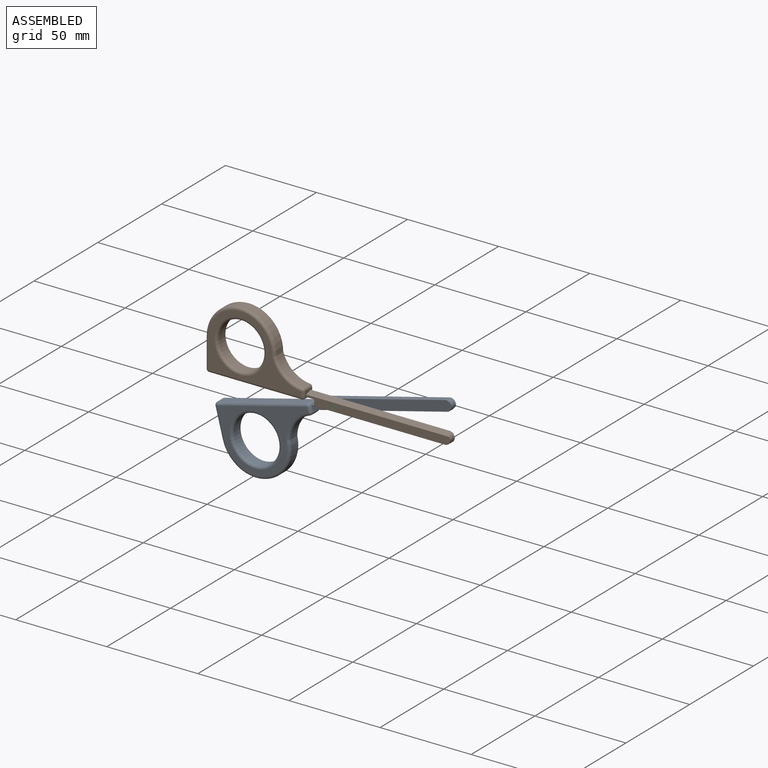
[diagram: assembled view]
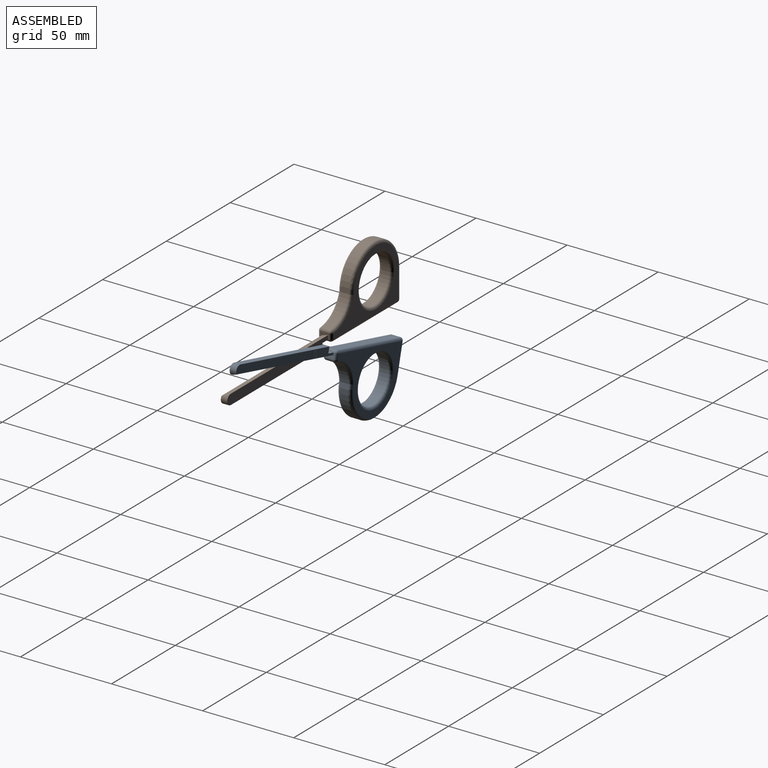
[diagram: assembled view, second angle]
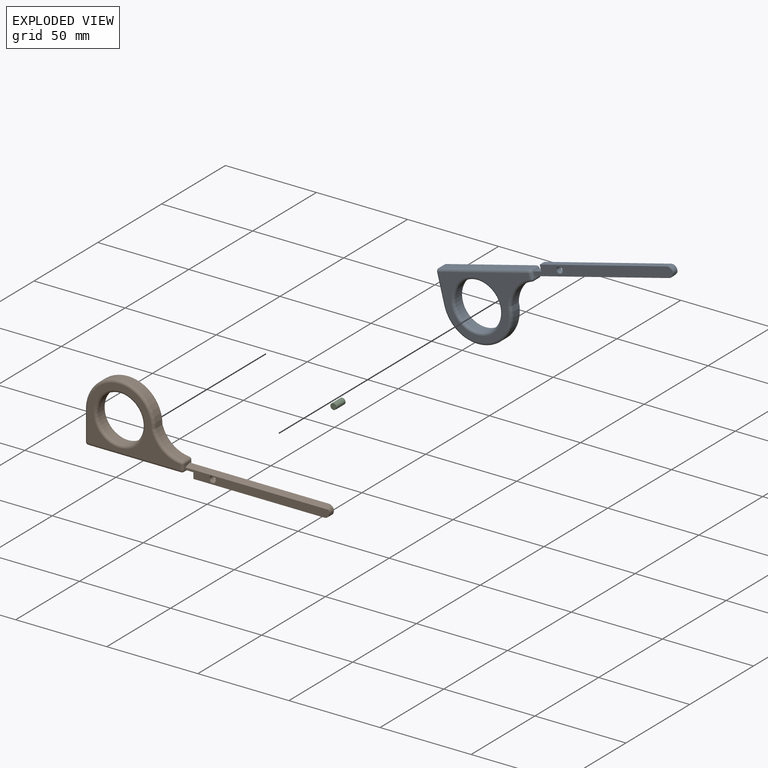
[diagram: exploded view]
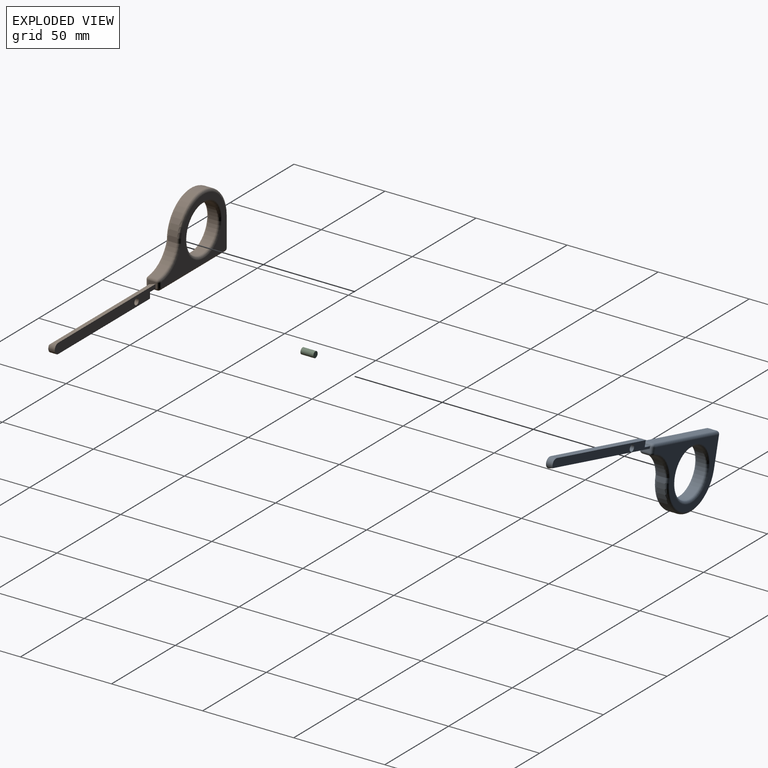
[diagram: exploded view, second angle]
ASSEMBLY  parts=3 mates=2
PART A: 41 faces, bbox 134.5x7.6x40.4 mm
  f0: plane 4.57x2.88mm, normal (1,0,0), area 5.9mm2, adj f1,f3,f15,f23,f28,f31,f34,f37
  f1: plane 76.2x0.01mm, normal (0,0,1), area 0.5mm2, adj f0,f2,f15,f39
  f2: cylinder r=2.79mm len=5.59mm, axis (0,1,0), area 25.2mm2, adj f1,f3,f13,f15,f39
  f3: plane 79.02x4.48mm, normal (0,-1,0), area 328.1mm2, adj f0,f2,f11,f12,f13,f14,f23,f39
  f4: cylinder r=16.51mm len=14.48mm, axis (0,1,0), area 91mm2, adj f5,f29,f30,f34
  f5: cylinder r=19.05mm len=38.1mm, axis (0,1,0), area 273.6mm2, adj f4,f6,f25,f26
  f6: plane 16.26x4.57mm, normal (-1,0,0), area 74.3mm2, adj f5,f16,f20,f21
  f7: cylinder r=12.7mm len=25.4mm, axis (0,1,0), area 364.8mm2, adj f35,f36
  f8: plane 50.93x4.57mm, normal (0,0,-1), area 232.8mm2, adj f16,f19,f22,f23
  f9: plane 50.93x33.78mm, normal (0,-1,0), area 521.5mm2, adj f19,f20,f25,f28,f29,f36
  f10: plane 50.93x33.78mm, normal (0,1,0), area 521.5mm2, adj f21,f22,f26,f30,f31,f35
  f11: plane 4.34x3.56mm, normal (0,0,-1), area 15.4mm2, adj f3,f12,f15,f23
  f12: plane 3.56x3.3mm, normal (-1,0,0), area 11.7mm2, adj f3,f11,f13,f15
  f13: plane 71.87x3.56mm, normal (0,0,-1), area 255.6mm2, adj f2,f3,f12,f15
  f14: cylinder r=1.71mm len=3.56mm, axis (0,1,0), area 38.3mm2, adj f3,f15
  f15: plane 79.02x5.59mm, normal (0,1,0), area 414.6mm2, adj f0,f1,f2,f11,f12,f13,f14,f23
  f16: cylinder r=1.52mm len=4.57mm, axis (0,-1,0), area 10.9mm2, adj f6,f8,f17,f18
  f17: sphere r=1.52mm, area 3.6mm2, adj f16,f19,f20
  f18: sphere r=1.52mm, area 3.6mm2, adj f16,f21,f22
  f19: cylinder r=1.52mm len=50.93mm, axis (-1,0,0), area 121.9mm2, adj f8,f9,f17,f24
  f20: cylinder r=1.52mm len=16.26mm, axis (0,0,1), area 38.9mm2, adj f6,f9,f17,f25
  f21: cylinder r=1.52mm len=16.26mm, axis (0,0,-1), area 38.9mm2, adj f6,f10,f18,f26
  f22: cylinder r=1.52mm len=50.93mm, axis (1,0,0), area 121.9mm2, adj f8,f10,f18,f27
  f23: cylinder r=1.52mm len=4.57mm, axis (0,1,0), area 10mm2, adj f0,f3,f8,f11,f15,f24,f27
  f24: sphere r=1.52mm, area 3.6mm2, adj f19,f23,f28
  f25: torus R=17.53mm, axis (0,-1,0), area 139.3mm2, adj f5,f9,f20,f29
  f26: torus R=17.53mm, axis (0,-1,0), area 139.3mm2, adj f5,f10,f21,f30
  f27: sphere r=1.52mm, area 3.6mm2, adj f22,f23,f31
  f28: cylinder r=1.52mm len=2.88mm, axis (0,0,-1), area 6.9mm2, adj f0,f9,f24,f32
  f29: torus R=18.03mm, axis (0,-1,0), area 49.4mm2, adj f4,f9,f25,f32
  f30: torus R=18.03mm, axis (0,-1,0), area 49.4mm2, adj f4,f10,f26,f33
  f31: cylinder r=1.52mm len=2.88mm, axis (0,0,1), area 6.9mm2, adj f0,f10,f27,f33
  f32: sphere r=1.52mm, area 3.5mm2, adj f28,f29,f34
  f33: sphere r=1.52mm, area 3.5mm2, adj f30,f31,f34
  f34: cylinder r=1.52mm len=4.57mm, axis (0,1,0), area 10.4mm2, adj f0,f4,f32,f33
  f35: torus R=14.22mm, axis (0,-1,0), area 199.4mm2, adj f7,f10
  f36: torus R=14.22mm, axis (0,-1,0), area 199.4mm2, adj f7,f9
  f37: plane 3.61x0.12mm, normal (0,0,-1), area 0.4mm2, adj f0,f38,f39,f40
  f38: plane 1.13x0.12mm, normal (0,1,-0.01), area 0.1mm2, adj f0,f37,f39,f40
  f39: plane 78.55x3.62mm, normal (0,-0.3,0.95), area 289.7mm2, adj f0,f1,f2,f3,f37,f38,f40
  f40: plane 3.62x1.13mm, normal (1,0,0), area 2mm2, adj f37,f38,f39
PART B: same geometry as A
PART C: 3 faces, bbox 3.4x3.4x7.1 mm
  f0: cylinder r=1.69mm len=7.11mm, axis (0,0,-1), area 75.5mm2, adj f1,f2
  f1: plane 3.38x3.38mm, normal (0,0,1), area 9mm2, adj f0
  f2: plane 3.38x3.38mm, normal (0,0,-1), area 9mm2, adj f0
PLACE A rot(axis=(0.99,0,0.12),180deg) t=(42.77,34.47,-21.7)mm
PLACE B t=(34,30.91,48.45)mm fixed
PLACE C rot(axis=(-1,0,0),90deg) t=(48.99,29.13,14.7)mm
MATE revolute A.f14 <-> B.f14  axis (0,-1,0) through (48.99,32.69,14.7)mm
MATE fastened C.f0 <-> B.f14  axis (0,-1,0) through (48.99,29.13,14.7)mm
